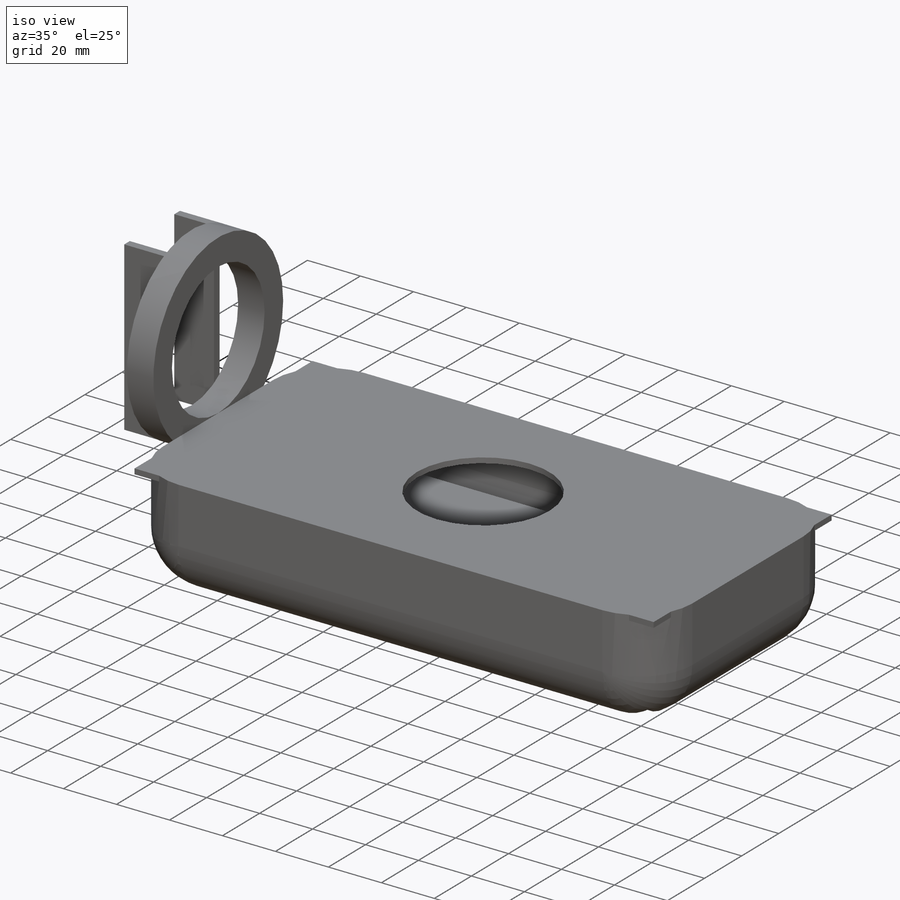
[diagram: iso view]
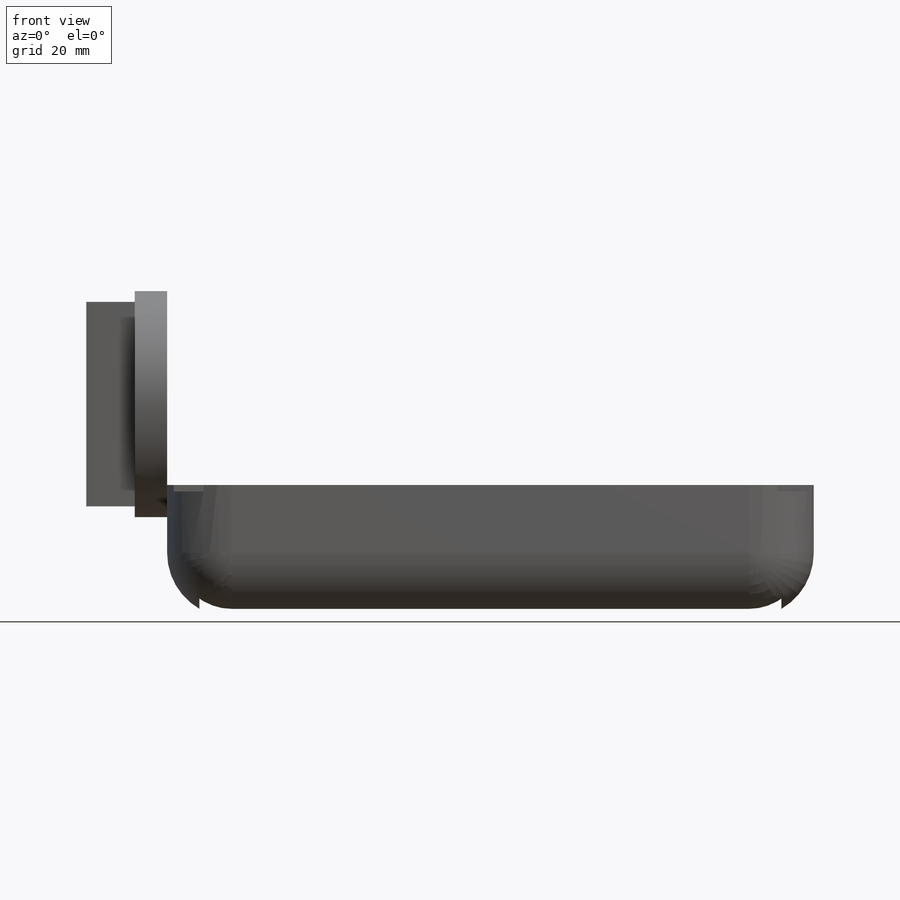
[diagram: front view]
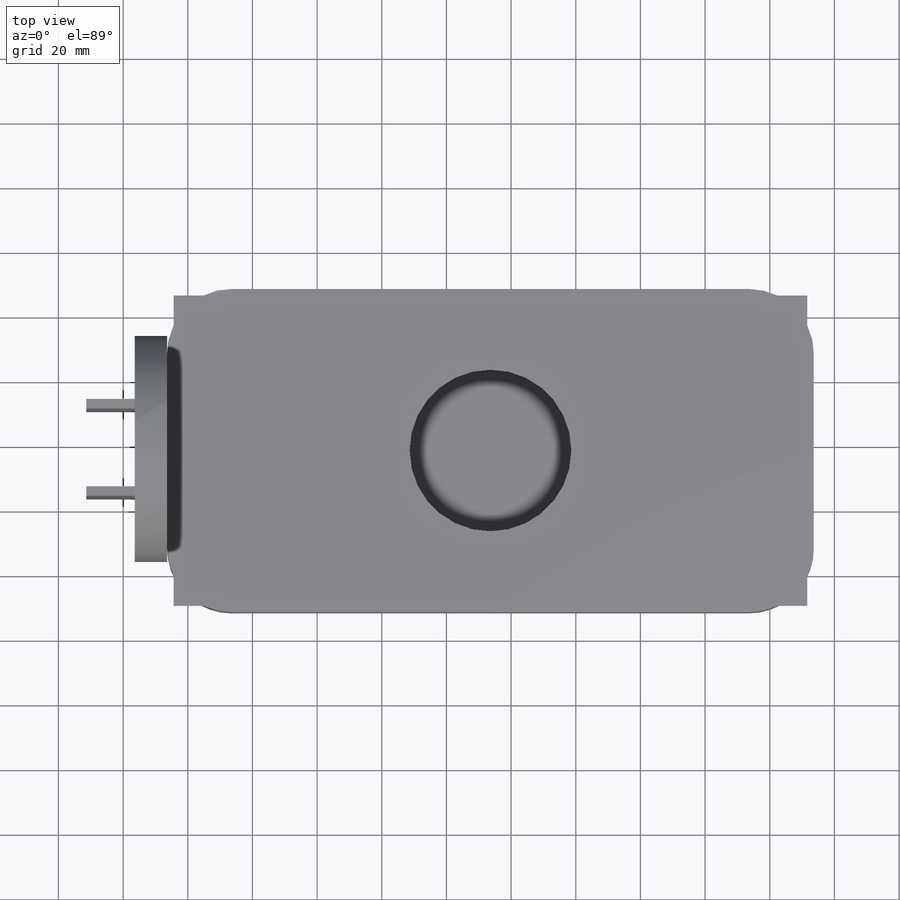
[diagram: top view]
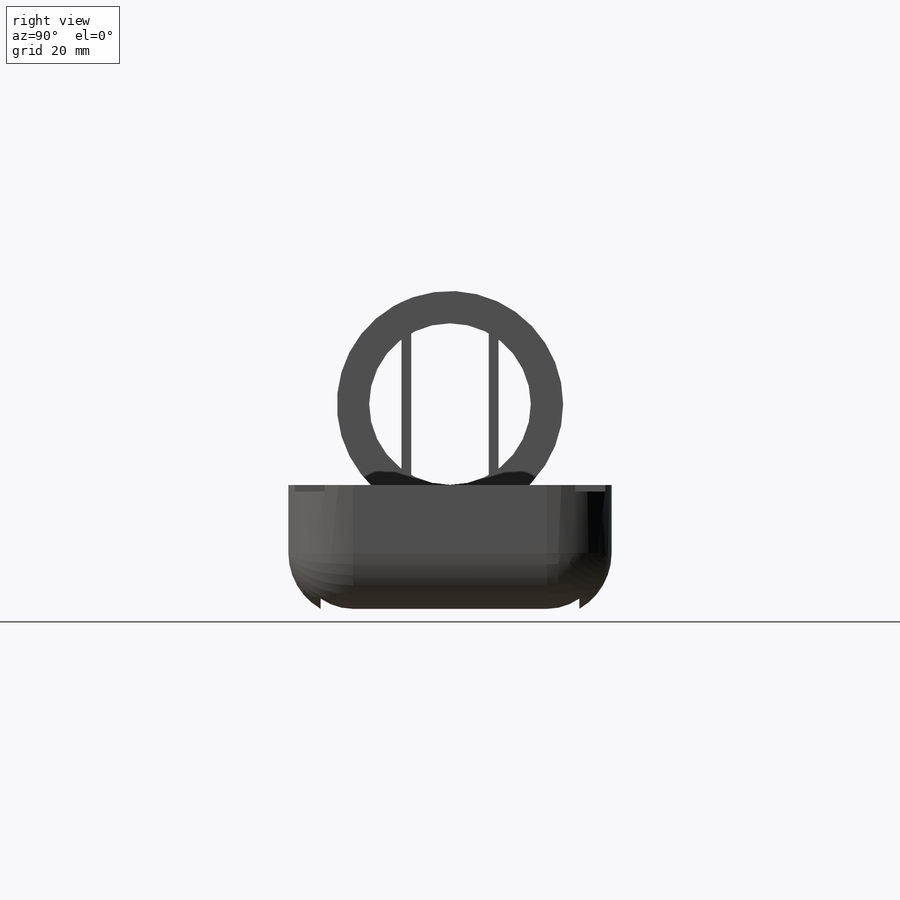
[diagram: right view]
SOLIDWORKS PART (.sldprt)
format: sldprt  version: not decoded by parser v0  size: 496,640 bytes
history: native  units: mm
features: sketch x14, extrude x8, cut_extrude x6, fillet x2, material x1, shell x1 (+12 scaffold rows collapsed)
feature tree (44):
  scaffold x12  (default folders/planes/origin — collapsed)
  material  "Material <not specified>"
  sketch  "Sketch1"  dims[D1=100.0mm D2=200.0mm]
  extrude  "Boss-Extrude1"  Depth=50mm
  fillet  "Fillet3"  Radius=20mm
  fillet  "Fillet4"  Radius=20mm
  sketch  "Sketch2"  dims[D1=10.0mm D2=10.0mm D3=10.0mm D4=10.0mm]
  cut_extrude  "Cut-Extrude2"  Depth=10mm
  shell  "Shell1"  Thickness=2mm
  sketch  "Sketch3"
  extrude  "Boss-Extrude2"  Depth=20mm
  sketch  "Sketch4"  dims[D1=10.0mm D2=10.0mm D3=10.0mm D4=10.0mm]
  extrude  "Boss-Extrude3"  Depth=2mm
  sketch  "Sketch5"
  cut_extrude  "Cut-Extrude3"  Depth=2mm
  sketch  "Sketch6"
  cut_extrude  "Cut-Extrude4"  Depth=5mm
  sketch  "Sketch7"
  extrude  "Boss-Extrude4"  Depth=15mm
  sketch  "Sketch8"
  cut_extrude  "Cut-Extrude5"  Depth=15mm
  sketch  "Sketch9"  dims[D1=10.0mm D2=10.0mm D3=10.0mm D4=10.0mm D5=10.0mm D6=10.0mm D7=10.0mm D8=10.0mm D9=10.0mm D10=10.0mm D11=10.0mm D12=10.0mm D13=10.0mm D14=10.0mm D15=10.0mm D16=10.0mm]
  extrude  "Boss-Extrude5"  Depth=20mm
  sketch  "Sketch10"  dims[D1=0.0mm D2=0.0mm D3=0.0mm D4=0.0mm]
  extrude  "Boss-Extrude6"  Depth=2mm
  sketch  "Sketch11"
  cut_extrude  "Cut-Extrude6"  Depth=100mm
  sketch  "Sketch12"  dims[c1.D1=140.0mm c1.D5=50.0mm c2.D1=50.0mm c2.D2=50.0mm c2.D3=100.0mm c2.D4=100.0mm]
  cut_extrude  "Cut-Extrude7"  Depth=4mm
  sketch  "Sketch14"  dims[c1.D1=~146.05916mm c1.D3=70.0mm c1.D4=50.0mm c2.D1=50.0mm c2.D2=25.0mm c2.D5=60.0mm]
  extrude  "Boss-Extrude8"  Depth=10mm
  sketch  "Sketch15"  dims[D1=3.0mm D2=15.0mm D3=35.0mm D4=35.0mm D5=3.0mm]
  extrude  "Boss-Extrude9"  Depth=15mm
decode coverage: 25 of 31 modeling features carry decoded parameters
note: ~ marks probable driven/reference dimensions
note: suppression state not decoded; provenance and decode notes live in map.json
